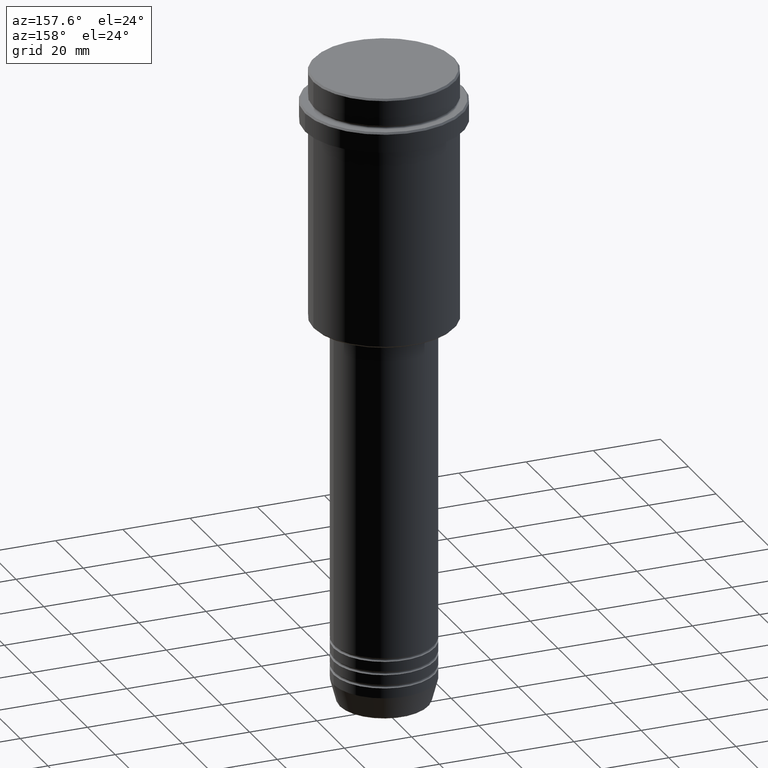
[diagram: clean part render]
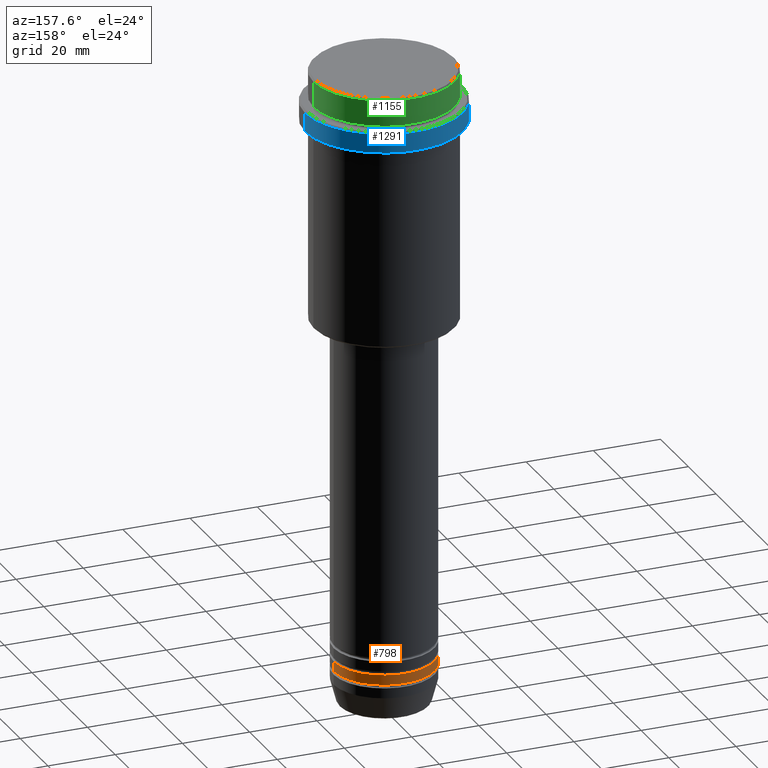
[diagram: same view with three faces highlighted in distinct colors, each labeled with its STEP entity id]
A machine part, auxiliary view with three faces highlighted in distinct colors.
Their STEP definitions:

[orange] entity #798 — the highlighted cylindrical surface (partial cylindrical patch) has radius 15 mm, axis along (-0, -0, 1).
#28 = CARTESIAN_POINT ( 'NONE',  ( 0.000000000000000000, 0.000000000000000000, 0.000000000000000000 ) ) ;
#51 = DIRECTION ( 'NONE',  ( 1.000000000000000000, 0.000000000000000000, 0.000000000000000000 ) ) ;
#102 = VERTEX_POINT ( 'NONE', #1140 ) ;
#114 = AXIS2_PLACEMENT_3D ( 'NONE', #971, #1404, #566 ) ;
#159 = AXIS2_PLACEMENT_3D ( 'NONE', #1252, #1257, #51 ) ;
#344 = EDGE_CURVE ( 'NONE', #796, #712, #1093, .T. ) ;
#357 = ORIENTED_EDGE ( 'NONE', *, *, #344, .F. ) ;
#423 = CARTESIAN_POINT ( 'NONE',  ( 15.00000000000000000, 0.000000000000000000, 0.000000000000000000 ) ) ;
#507 = EDGE_CURVE ( 'NONE', #796, #102, #1394, .T. ) ;
#531 = ORIENTED_EDGE ( 'NONE', *, *, #1241, .T. ) ;
#557 = DIRECTION ( 'NONE',  ( -0.000000000000000000, -0.000000000000000000, 1.000000000000000000 ) ) ;
#566 = DIRECTION ( 'NONE',  ( 1.000000000000000000, 0.000000000000000000, 0.000000000000000000 ) ) ;
#601 = AXIS2_PLACEMENT_3D ( 'NONE', #28, #557, #1330 ) ;
#653 = VECTOR ( 'NONE', #1102, 1000.000000000000000 ) ;
#663 = CYLINDRICAL_SURFACE ( 'NONE', #601, 15.00000000000000000 ) ;
#676 = VERTEX_POINT ( 'NONE', #1416 ) ;
#712 = VERTEX_POINT ( 'NONE', #873 ) ;
#748 = ORIENTED_EDGE ( 'NONE', *, *, #768, .F. ) ;
#765 = CARTESIAN_POINT ( 'NONE',  ( -15.00000000000000000, 1.836970198721029589E-15, 0.000000000000000000 ) ) ;
#768 = EDGE_CURVE ( 'NONE', #712, #676, #1259, .T. ) ;
#796 = VERTEX_POINT ( 'NONE', #1319 ) ;
#798 = ADVANCED_FACE ( 'NONE', ( #888 ), #663, .T. ) ;
#873 = CARTESIAN_POINT ( 'NONE',  ( 15.00000000000000000, 0.000000000000000000, -175.9999999999998863 ) ) ;
#888 = FACE_OUTER_BOUND ( 'NONE', #1183, .T. ) ;
#971 = CARTESIAN_POINT ( 'NONE',  ( 0.000000000000000000, 0.000000000000000000, -175.9999999999998863 ) ) ;
#1036 = VECTOR ( 'NONE', #1187, 1000.000000000000000 ) ;
#1093 = LINE ( 'NONE', #423, #1036 ) ;
#1102 = DIRECTION ( 'NONE',  ( -0.000000000000000000, -0.000000000000000000, 1.000000000000000000 ) ) ;
#1140 = CARTESIAN_POINT ( 'NONE',  ( -15.00000000000000000, 1.836970198721029589E-15, -178.9999999999998863 ) ) ;
#1183 = EDGE_LOOP ( 'NONE', ( #1391, #531, #748, #357 ) ) ;
#1187 = DIRECTION ( 'NONE',  ( -0.000000000000000000, -0.000000000000000000, 1.000000000000000000 ) ) ;
#1231 = LINE ( 'NONE', #765, #653 ) ;
#1241 = EDGE_CURVE ( 'NONE', #102, #676, #1231, .T. ) ;
#1252 = CARTESIAN_POINT ( 'NONE',  ( 0.000000000000000000, 0.000000000000000000, -178.9999999999998863 ) ) ;
#1257 = DIRECTION ( 'NONE',  ( -0.000000000000000000, -0.000000000000000000, 1.000000000000000000 ) ) ;
#1259 = CIRCLE ( 'NONE', #114, 15.00000000000000000 ) ;
#1319 = CARTESIAN_POINT ( 'NONE',  ( 15.00000000000000000, 0.000000000000000000, -178.9999999999998863 ) ) ;
#1330 = DIRECTION ( 'NONE',  ( 1.000000000000000000, 0.000000000000000000, 0.000000000000000000 ) ) ;
#1391 = ORIENTED_EDGE ( 'NONE', *, *, #507, .T. ) ;
#1394 = CIRCLE ( 'NONE', #159, 15.00000000000000000 ) ;
#1404 = DIRECTION ( 'NONE',  ( -0.000000000000000000, -0.000000000000000000, 1.000000000000000000 ) ) ;
#1416 = CARTESIAN_POINT ( 'NONE',  ( -15.00000000000000000, 1.836970198721029589E-15, -175.9999999999998863 ) ) ;

[blue] entity #1291 — the highlighted cylindrical surface (partial cylindrical patch) has radius 23.5 mm, axis along (-0, -0, 1).
#69 = AXIS2_PLACEMENT_3D ( 'NONE', #1078, #762, #1282 ) ;
#78 = CARTESIAN_POINT ( 'NONE',  ( 23.50000000000000000, 0.000000000000000000, 0.000000000000000000 ) ) ;
#109 = FACE_OUTER_BOUND ( 'NONE', #626, .T. ) ;
#222 = CARTESIAN_POINT ( 'NONE',  ( 23.50000000000000000, 0.000000000000000000, -9.500000000000000000 ) ) ;
#245 = CARTESIAN_POINT ( 'NONE',  ( -23.50000000000000000, 2.877919977996280320E-15, 0.000000000000000000 ) ) ;
#271 = ORIENTED_EDGE ( 'NONE', *, *, #277, .T. ) ;
#277 = EDGE_CURVE ( 'NONE', #863, #1074, #871, .T. ) ;
#339 = VERTEX_POINT ( 'NONE', #222 ) ;
#411 = VERTEX_POINT ( 'NONE', #1332 ) ;
#419 = ORIENTED_EDGE ( 'NONE', *, *, #484, .T. ) ;
#461 = CYLINDRICAL_SURFACE ( 'NONE', #1107, 23.50000000000000000 ) ;
#464 = LINE ( 'NONE', #245, #916 ) ;
#484 = EDGE_CURVE ( 'NONE', #1074, #411, #464, .T. ) ;
#514 = DIRECTION ( 'NONE',  ( -0.000000000000000000, -0.000000000000000000, 1.000000000000000000 ) ) ;
#543 = CARTESIAN_POINT ( 'NONE',  ( -23.50000000000000711, 2.877919977996281109E-15, -15.00000000000000000 ) ) ;
#555 = CARTESIAN_POINT ( 'NONE',  ( 0.000000000000000000, 0.000000000000000000, 0.000000000000000000 ) ) ;
#563 = DIRECTION ( 'NONE',  ( 1.000000000000000000, 0.000000000000000000, 0.000000000000000000 ) ) ;
#626 = EDGE_LOOP ( 'NONE', ( #271, #419, #720, #1389 ) ) ;
#715 = EDGE_CURVE ( 'NONE', #411, #339, #963, .T. ) ;
#720 = ORIENTED_EDGE ( 'NONE', *, *, #715, .T. ) ;
#762 = DIRECTION ( 'NONE',  ( -0.000000000000000000, -0.000000000000000000, 1.000000000000000000 ) ) ;
#830 = VECTOR ( 'NONE', #1090, 1000.000000000000000 ) ;
#863 = VERTEX_POINT ( 'NONE', #882 ) ;
#871 = CIRCLE ( 'NONE', #69, 23.50000000000000355 ) ;
#882 = CARTESIAN_POINT ( 'NONE',  ( 23.50000000000000355, 0.000000000000000000, -15.00000000000000000 ) ) ;
#891 = DIRECTION ( 'NONE',  ( -0.000000000000000000, -0.000000000000000000, 1.000000000000000000 ) ) ;
#916 = VECTOR ( 'NONE', #514, 1000.000000000000000 ) ;
#963 = CIRCLE ( 'NONE', #1347, 23.50000000000000000 ) ;
#1074 = VERTEX_POINT ( 'NONE', #543 ) ;
#1078 = CARTESIAN_POINT ( 'NONE',  ( 0.000000000000000000, 0.000000000000000000, -15.00000000000000000 ) ) ;
#1090 = DIRECTION ( 'NONE',  ( -0.000000000000000000, -0.000000000000000000, 1.000000000000000000 ) ) ;
#1107 = AXIS2_PLACEMENT_3D ( 'NONE', #555, #891, #563 ) ;
#1127 = EDGE_CURVE ( 'NONE', #863, #339, #1184, .T. ) ;
#1184 = LINE ( 'NONE', #78, #830 ) ;
#1186 = DIRECTION ( 'NONE',  ( 0.000000000000000000, 0.000000000000000000, -1.000000000000000000 ) ) ;
#1282 = DIRECTION ( 'NONE',  ( 1.000000000000000000, 0.000000000000000000, 0.000000000000000000 ) ) ;
#1291 = ADVANCED_FACE ( 'NONE', ( #109 ), #461, .T. ) ;
#1313 = CARTESIAN_POINT ( 'NONE',  ( 0.000000000000000000, 0.000000000000000000, -9.500000000000000000 ) ) ;
#1332 = CARTESIAN_POINT ( 'NONE',  ( -23.50000000000000000, 2.877919977996280320E-15, -9.500000000000000000 ) ) ;
#1347 = AXIS2_PLACEMENT_3D ( 'NONE', #1313, #1186, #1410 ) ;
#1389 = ORIENTED_EDGE ( 'NONE', *, *, #1127, .F. ) ;
#1410 = DIRECTION ( 'NONE',  ( 1.000000000000000000, 0.000000000000000000, 0.000000000000000000 ) ) ;

[green] entity #1155 — the highlighted cylindrical surface (partial cylindrical patch) has radius 21 mm, axis along (-0, -0, 1).
#77 = EDGE_LOOP ( 'NONE', ( #807, #373, #408, #323 ) ) ;
#97 = CARTESIAN_POINT ( 'NONE',  ( 0.000000000000000000, 0.000000000000000000, -7.999999999999998224 ) ) ;
#104 = VERTEX_POINT ( 'NONE', #506 ) ;
#121 = DIRECTION ( 'NONE',  ( -0.000000000000000000, -0.000000000000000000, 1.000000000000000000 ) ) ;
#134 = AXIS2_PLACEMENT_3D ( 'NONE', #1025, #931, #156 ) ;
#156 = DIRECTION ( 'NONE',  ( 1.000000000000000000, 0.000000000000000000, 0.000000000000000000 ) ) ;
#173 = EDGE_CURVE ( 'NONE', #957, #255, #297, .T. ) ;
#199 = DIRECTION ( 'NONE',  ( -0.000000000000000000, -0.000000000000000000, 1.000000000000000000 ) ) ;
#217 = DIRECTION ( 'NONE',  ( 1.000000000000000000, 0.000000000000000000, 0.000000000000000000 ) ) ;
#251 = VECTOR ( 'NONE', #703, 1000.000000000000000 ) ;
#255 = VERTEX_POINT ( 'NONE', #329 ) ;
#268 = CARTESIAN_POINT ( 'NONE',  ( -21.00000000000000000, 2.571758278209441661E-15, 0.000000000000000000 ) ) ;
#297 = LINE ( 'NONE', #268, #251 ) ;
#310 = DIRECTION ( 'NONE',  ( 1.000000000000000000, 0.000000000000000000, 0.000000000000000000 ) ) ;
#323 = ORIENTED_EDGE ( 'NONE', *, *, #810, .F. ) ;
#329 = CARTESIAN_POINT ( 'NONE',  ( -21.00000000000000000, 2.571758278209441661E-15, -0.5000000000000108802 ) ) ;
#342 = CARTESIAN_POINT ( 'NONE',  ( 21.00000000000000000, 0.000000000000000000, 0.000000000000000000 ) ) ;
#373 = ORIENTED_EDGE ( 'NONE', *, *, #173, .T. ) ;
#408 = ORIENTED_EDGE ( 'NONE', *, *, #528, .T. ) ;
#471 = AXIS2_PLACEMENT_3D ( 'NONE', #97, #199, #217 ) ;
#506 = CARTESIAN_POINT ( 'NONE',  ( 21.00000000000000000, 0.000000000000000000, -0.5000000000000108802 ) ) ;
#528 = EDGE_CURVE ( 'NONE', #255, #104, #1173, .T. ) ;
#562 = VERTEX_POINT ( 'NONE', #1381 ) ;
#633 = FACE_OUTER_BOUND ( 'NONE', #77, .T. ) ;
#681 = LINE ( 'NONE', #342, #875 ) ;
#703 = DIRECTION ( 'NONE',  ( -0.000000000000000000, -0.000000000000000000, 1.000000000000000000 ) ) ;
#736 = AXIS2_PLACEMENT_3D ( 'NONE', #1069, #1272, #310 ) ;
#807 = ORIENTED_EDGE ( 'NONE', *, *, #1141, .T. ) ;
#810 = EDGE_CURVE ( 'NONE', #562, #104, #681, .T. ) ;
#875 = VECTOR ( 'NONE', #121, 1000.000000000000000 ) ;
#931 = DIRECTION ( 'NONE',  ( 0.000000000000000000, 0.000000000000000000, -1.000000000000000000 ) ) ;
#957 = VERTEX_POINT ( 'NONE', #1133 ) ;
#984 = CYLINDRICAL_SURFACE ( 'NONE', #736, 21.00000000000000000 ) ;
#1025 = CARTESIAN_POINT ( 'NONE',  ( 0.000000000000000000, 0.000000000000000000, -0.5000000000000108802 ) ) ;
#1069 = CARTESIAN_POINT ( 'NONE',  ( 0.000000000000000000, 0.000000000000000000, 0.000000000000000000 ) ) ;
#1133 = CARTESIAN_POINT ( 'NONE',  ( -21.00000000000000000, 2.571758278209441661E-15, -7.999999999999998224 ) ) ;
#1141 = EDGE_CURVE ( 'NONE', #562, #957, #1264, .T. ) ;
#1155 = ADVANCED_FACE ( 'NONE', ( #633 ), #984, .T. ) ;
#1173 = CIRCLE ( 'NONE', #134, 21.00000000000000000 ) ;
#1264 = CIRCLE ( 'NONE', #471, 21.00000000000000000 ) ;
#1272 = DIRECTION ( 'NONE',  ( -0.000000000000000000, -0.000000000000000000, 1.000000000000000000 ) ) ;
#1381 = CARTESIAN_POINT ( 'NONE',  ( 21.00000000000000000, 0.000000000000000000, -7.999999999999998224 ) ) ;